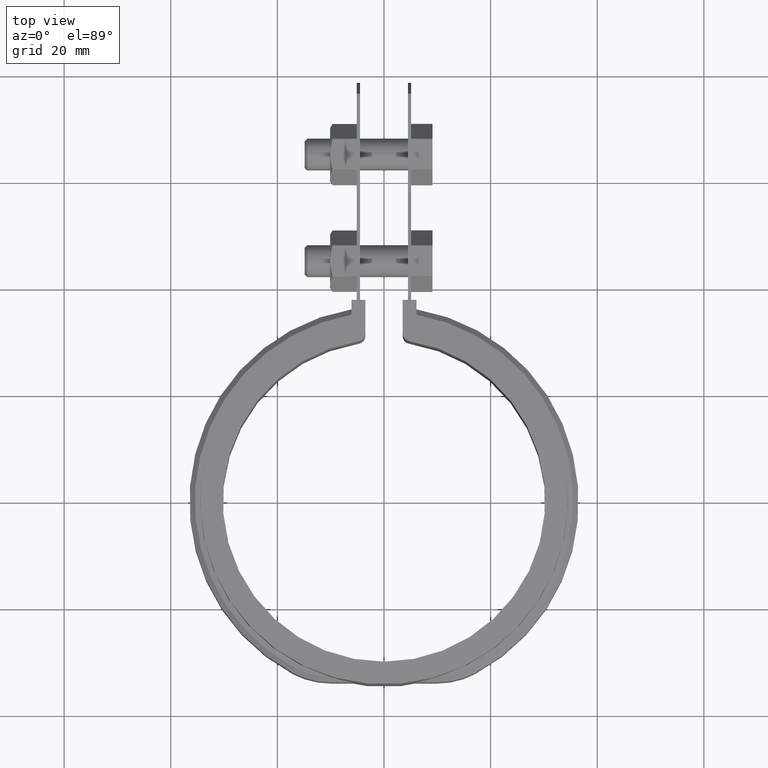
[diagram: clean part render]
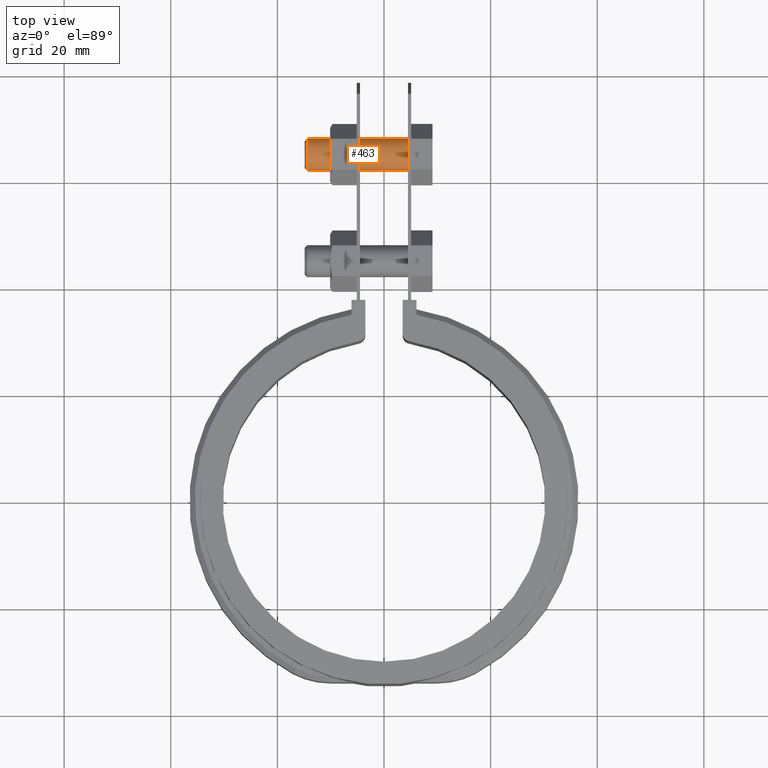
[diagram: same view with one face highlighted and labeled with its STEP entity id]
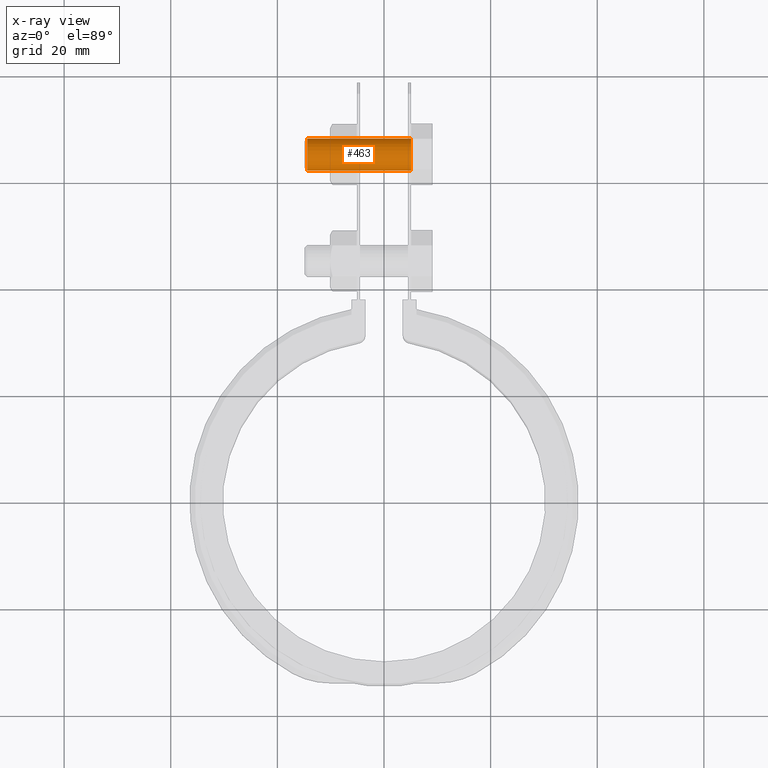
[diagram: x-ray of the same camera — body ghosted, the highlighted face saturated]
A machine part, top view. The second image highlights one B-rep face of the part: STEP entity #463.
The next image is the same camera in x-ray: the body ghosted, the highlighted face saturated — about 0% of this face is hidden behind the body in this view.
In plain terms, the highlighted cylindrical surface (bore or boss wall) has radius 3 mm, axis along (1, 0, 0).
Its self-contained STEP definition (entity closure, byte-faithful):
#463 = ADVANCED_FACE( '', ( #838, #839 ), #840, .T. );
#838 = FACE_OUTER_BOUND( '', #1798, .T. );
#839 = FACE_OUTER_BOUND( '', #1799, .T. );
#840 = CYLINDRICAL_SURFACE( '', #1800, 2.99999999999993 );
#1798 = EDGE_LOOP( '', ( #4031 ) );
#1799 = EDGE_LOOP( '', ( #4032 ) );
#1800 = AXIS2_PLACEMENT_3D( '', #4033, #4034, #4035 );
#4031 = ORIENTED_EDGE( '', *, *, #4833, .T. );
#4032 = ORIENTED_EDGE( '', *, *, #4827, .F. );
#4033 = CARTESIAN_POINT( '', ( 13.5487843911354, 65.1315111874220, -12.5000000000000 ) );
#4034 = DIRECTION( '', ( 1.00000000000000, 0.000000000000000, 0.000000000000000 ) );
#4035 = DIRECTION( '', ( 0.000000000000000, 0.000000000000000, 1.00000000000000 ) );
#4827 = EDGE_CURVE( '', #5614, #5614, #5615, .F. );
#4833 = EDGE_CURVE( '', #5624, #5624, #5625, .T. );
#5614 = VERTEX_POINT( '', #8598 );
#5615 = CIRCLE( '', #8599, 2.99999999999993 );
#5624 = VERTEX_POINT( '', #8613 );
#5625 = CIRCLE( '', #8614, 2.99999999999993 );
#8598 = CARTESIAN_POINT( '', ( 5.10000000000001, 65.1315111874220, -9.50000000000007 ) );
#8599 = AXIS2_PLACEMENT_3D( '', #9435, #9436, #9437 );
#8613 = CARTESIAN_POINT( '', ( -14.3999999999991, 65.1315111874220, -15.4999999999999 ) );
#8614 = AXIS2_PLACEMENT_3D( '', #9443, #9444, #9445 );
#9435 = CARTESIAN_POINT( '', ( 5.10000000000001, 65.1315111874220, -12.5000000000000 ) );
#9436 = DIRECTION( '', ( -1.00000000000000, 0.000000000000000, 0.000000000000000 ) );
#9437 = DIRECTION( '', ( 0.000000000000000, 0.000000000000000, 1.00000000000000 ) );
#9443 = CARTESIAN_POINT( '', ( -14.3999999999991, 65.1315111874220, -12.5000000000000 ) );
#9444 = DIRECTION( '', ( 1.00000000000000, 0.000000000000000, 0.000000000000000 ) );
#9445 = DIRECTION( '', ( 0.000000000000000, 0.000000000000000, -1.00000000000000 ) );